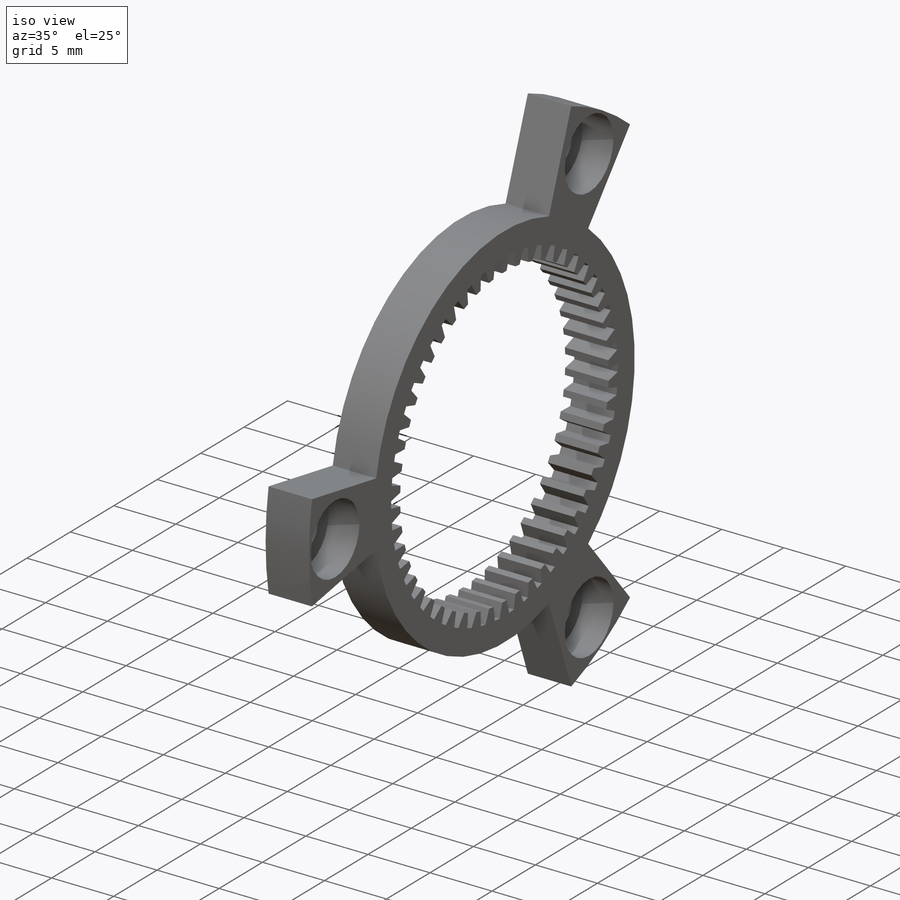
[diagram: iso view]
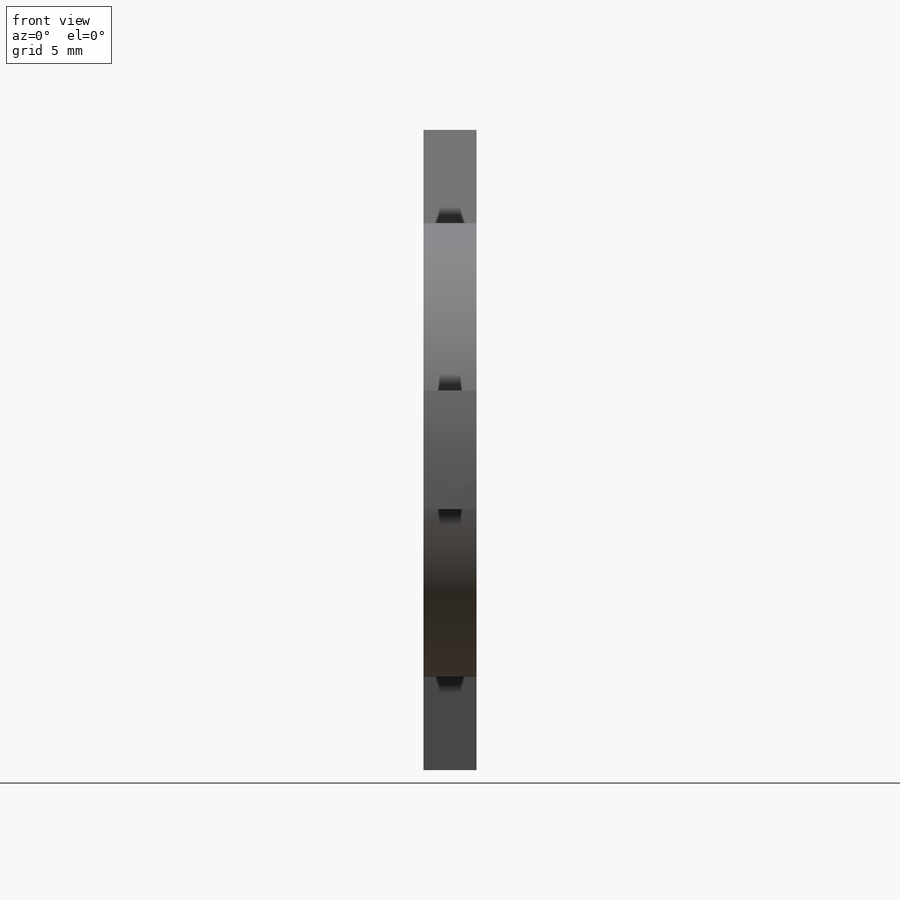
[diagram: front view]
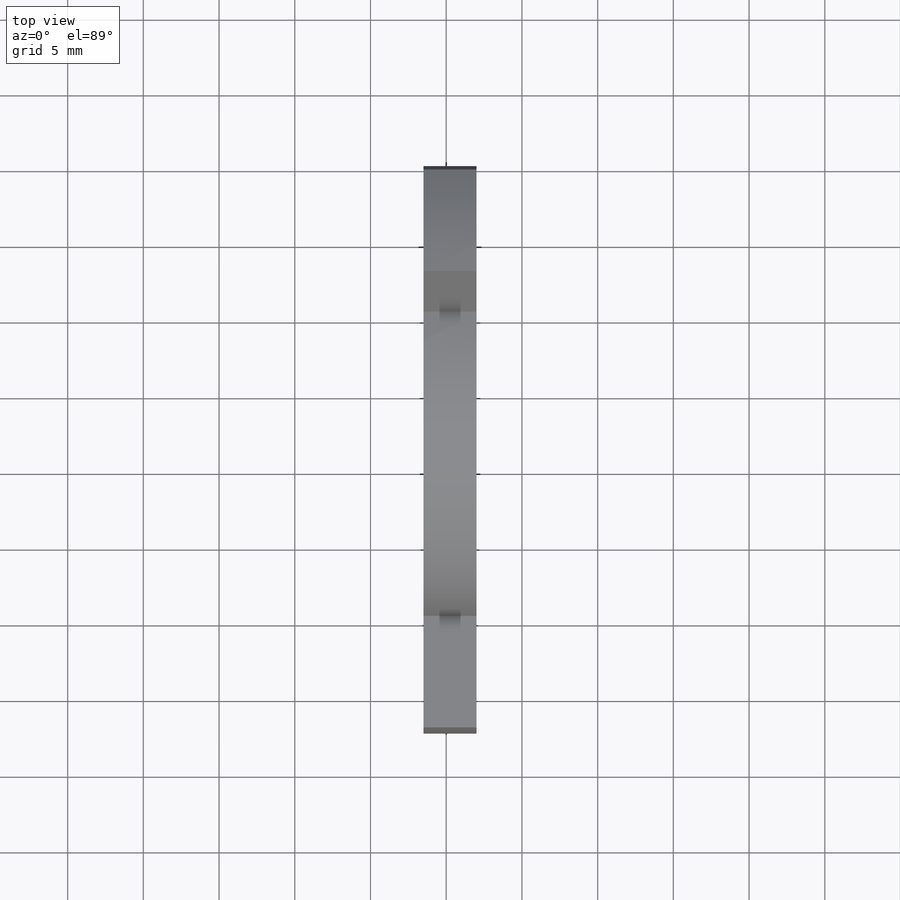
[diagram: top view]
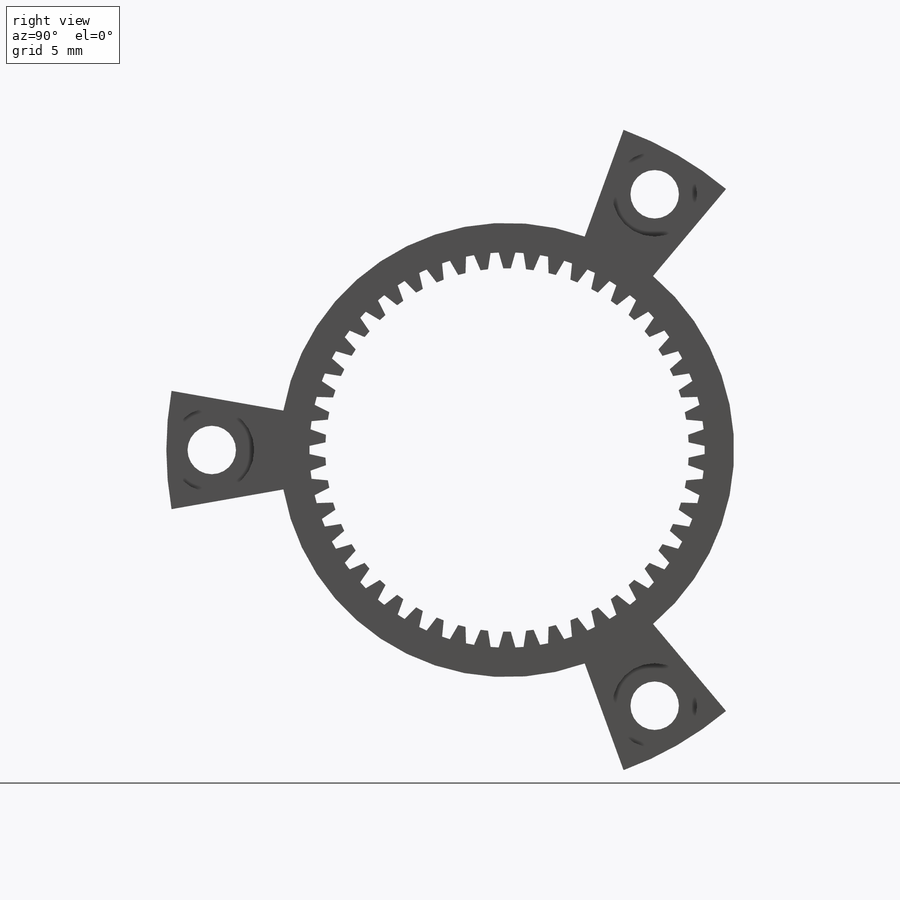
[diagram: right view]
SOLIDWORKS PART (.sldprt)
format: sldprt  version: not decoded by parser v0  size: 440,320 bytes
history: native  units: mm
features: sketch x7, cut_extrude x4, material x1, revolve x1, hole x1 (+13 scaffold rows collapsed)
feature tree (27):
  scaffold x13  (default folders/planes/origin — collapsed)
  material  "Plain Carbon Steel"
  sketch  "Sketch1"
  revolve  "Revolve1"  Angle=360deg
  sketch  "Sketch2"
  cut_extrude  "Cut-Extrude1"  Depth=3.5mm
  sketch  "Sketch3"
  cut_extrude  "Cut-Extrude2"  Depth=3.5mm
  sketch  "Sketch4"
  cut_extrude  "Cut-Extrude3"  Depth=3.5mm
  sketch  "Sketch5"
  cut_extrude  "Cut-Extrude4"  Depth=3.5mm
  hole  "CBORE for M3 Hex Head Machine Screw1"  Diameter=3.2mm Depth=3.5mm
  sketch  "Sketch7"
  sketch  "Sketch6"  dims[hole-wizard template sketch: 42 standard entries collapsed; hole parameters kept: c12.Thru Hole Depth=3.5mm c12.C'Bore Dia.=5.6mm c12.C'Bore Depth=2.5mm]
decode coverage: 7 of 13 modeling features carry decoded parameters
note: ~ marks probable driven/reference dimensions
note: suppression state not decoded; provenance and decode notes live in map.json
